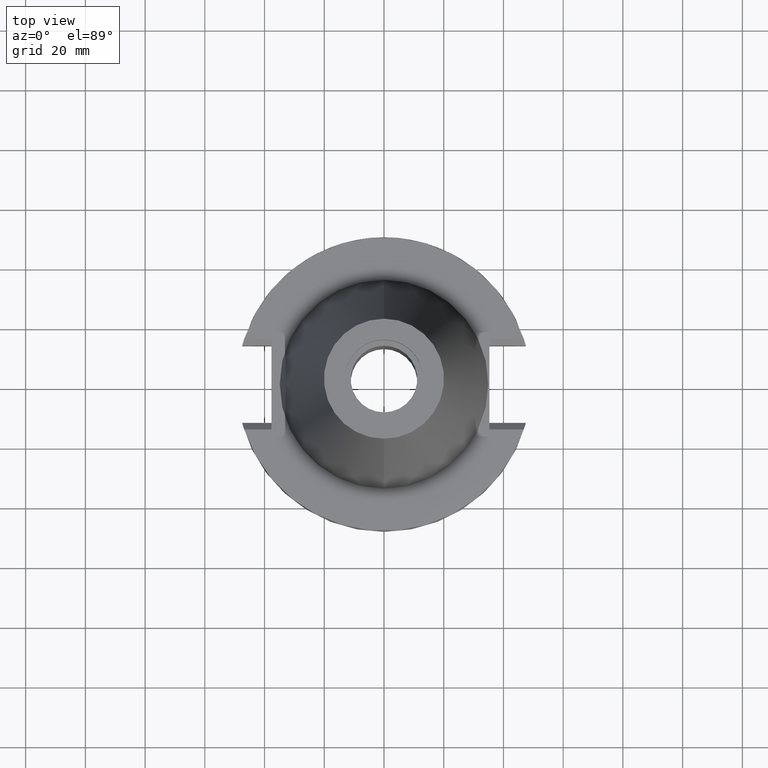
[diagram: clean part render]
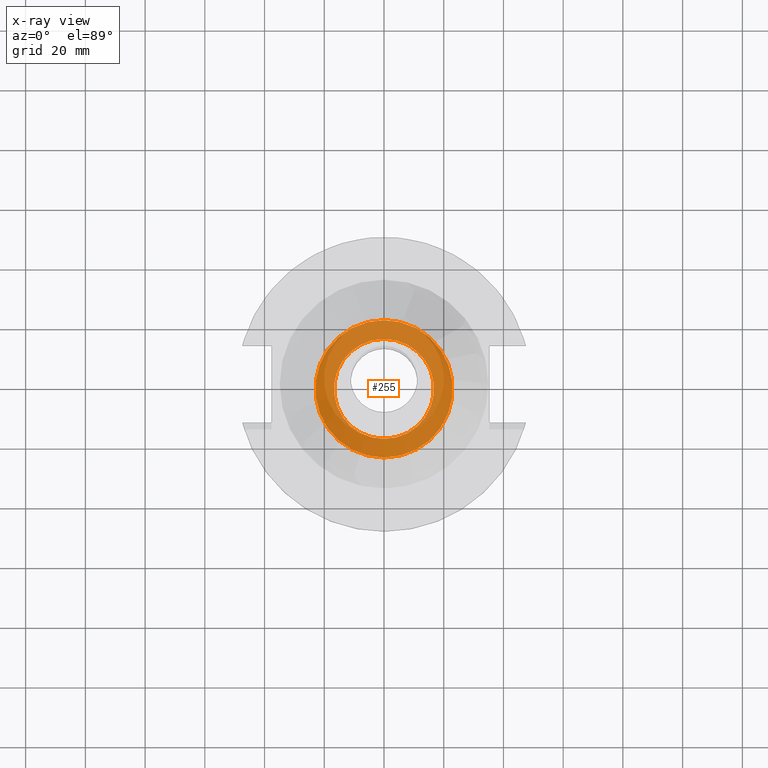
[diagram: x-ray — body ghosted, one internal face saturated and labeled with its STEP entity id]
A machine part, top view, then the same camera in x-ray: the body is ghosted and one INTERNAL B-rep face — a face not visible from any outside direction — is saturated and labeled: STEP entity #255.
In plain terms, the highlighted planar face has unit normal (0, 0, -1).
Its self-contained STEP definition (entity closure, byte-faithful):
#59 = FACE_OUTER_BOUND ( 'NONE', #2187, .T. ) ;
#91 = EDGE_CURVE ( 'NONE', #2912, #166, #1170, .T. ) ;
#166 = VERTEX_POINT ( 'NONE', #1207 ) ;
#255 = ADVANCED_FACE ( 'NONE', ( #59, #2011 ), #2998, .F. ) ;
#319 = DIRECTION ( 'NONE',  ( 0.0000000000000000000, 0.0000000000000000000, 1.000000000000000000 ) ) ;
#412 = CIRCLE ( 'NONE', #1998, 23.00000000000000000 ) ;
#546 = CARTESIAN_POINT ( 'NONE',  ( 0.0000000000000000000, 23.00000000000000000, -24.60000000000000142 ) ) ;
#552 = AXIS2_PLACEMENT_3D ( 'NONE', #1756, #2751, #3013 ) ;
#816 = CARTESIAN_POINT ( 'NONE',  ( 0.0000000000000000000, 0.0000000000000000000, -24.60000000000000142 ) ) ;
#820 = ORIENTED_EDGE ( 'NONE', *, *, #1392, .F. ) ;
#915 = DIRECTION ( 'NONE',  ( 0.0000000000000000000, 0.0000000000000000000, -1.000000000000000000 ) ) ;
#1067 = VERTEX_POINT ( 'NONE', #2909 ) ;
#1152 = CIRCLE ( 'NONE', #2961, 16.75000000000000000 ) ;
#1166 = ORIENTED_EDGE ( 'NONE', *, *, #91, .F. ) ;
#1170 = CIRCLE ( 'NONE', #2150, 23.00000000000000000 ) ;
#1207 = CARTESIAN_POINT ( 'NONE',  ( 0.0000000000000000000, -23.00000000000000000, -24.60000000000000142 ) ) ;
#1285 = DIRECTION ( 'NONE',  ( 0.0000000000000000000, -1.000000000000000000, 0.0000000000000000000 ) ) ;
#1331 = DIRECTION ( 'NONE',  ( 0.0000000000000000000, 0.0000000000000000000, 1.000000000000000000 ) ) ;
#1382 = DIRECTION ( 'NONE',  ( 0.0000000000000000000, 1.000000000000000000, 0.0000000000000000000 ) ) ;
#1392 = EDGE_CURVE ( 'NONE', #1067, #1643, #2827, .T. ) ;
#1643 = VERTEX_POINT ( 'NONE', #1882 ) ;
#1756 = CARTESIAN_POINT ( 'NONE',  ( 0.0000000000000000000, 0.0000000000000000000, -24.60000000000000142 ) ) ;
#1812 = DIRECTION ( 'NONE',  ( 0.0000000000000000000, 0.0000000000000000000, -1.000000000000000000 ) ) ;
#1861 = EDGE_CURVE ( 'NONE', #166, #2912, #412, .T. ) ;
#1882 = CARTESIAN_POINT ( 'NONE',  ( 0.0000000000000000000, -16.75000000000000000, -24.60000000000000142 ) ) ;
#1998 = AXIS2_PLACEMENT_3D ( 'NONE', #2531, #1812, #2797 ) ;
#2011 = FACE_BOUND ( 'NONE', #2167, .T. ) ;
#2150 = AXIS2_PLACEMENT_3D ( 'NONE', #3131, #915, #2901 ) ;
#2167 = EDGE_LOOP ( 'NONE', ( #820, #2649 ) ) ;
#2187 = EDGE_LOOP ( 'NONE', ( #1166, #2914 ) ) ;
#2322 = AXIS2_PLACEMENT_3D ( 'NONE', #2839, #1331, #1382 ) ;
#2531 = CARTESIAN_POINT ( 'NONE',  ( 0.0000000000000000000, 0.0000000000000000000, -24.60000000000000142 ) ) ;
#2649 = ORIENTED_EDGE ( 'NONE', *, *, #2878, .F. ) ;
#2751 = DIRECTION ( 'NONE',  ( 0.0000000000000000000, 0.0000000000000000000, -1.000000000000000000 ) ) ;
#2797 = DIRECTION ( 'NONE',  ( 0.0000000000000000000, -1.000000000000000000, 0.0000000000000000000 ) ) ;
#2827 = CIRCLE ( 'NONE', #2322, 16.75000000000000000 ) ;
#2839 = CARTESIAN_POINT ( 'NONE',  ( 0.0000000000000000000, 0.0000000000000000000, -24.60000000000000142 ) ) ;
#2878 = EDGE_CURVE ( 'NONE', #1643, #1067, #1152, .T. ) ;
#2901 = DIRECTION ( 'NONE',  ( 0.0000000000000000000, 1.000000000000000000, 0.0000000000000000000 ) ) ;
#2909 = CARTESIAN_POINT ( 'NONE',  ( 0.0000000000000000000, 16.75000000000000000, -24.60000000000000142 ) ) ;
#2912 = VERTEX_POINT ( 'NONE', #546 ) ;
#2914 = ORIENTED_EDGE ( 'NONE', *, *, #1861, .F. ) ;
#2961 = AXIS2_PLACEMENT_3D ( 'NONE', #816, #319, #1285 ) ;
#2998 = PLANE ( 'NONE',  #552 ) ;
#3013 = DIRECTION ( 'NONE',  ( 0.0000000000000000000, -1.000000000000000000, 0.0000000000000000000 ) ) ;
#3131 = CARTESIAN_POINT ( 'NONE',  ( 0.0000000000000000000, 0.0000000000000000000, -24.60000000000000142 ) ) ;